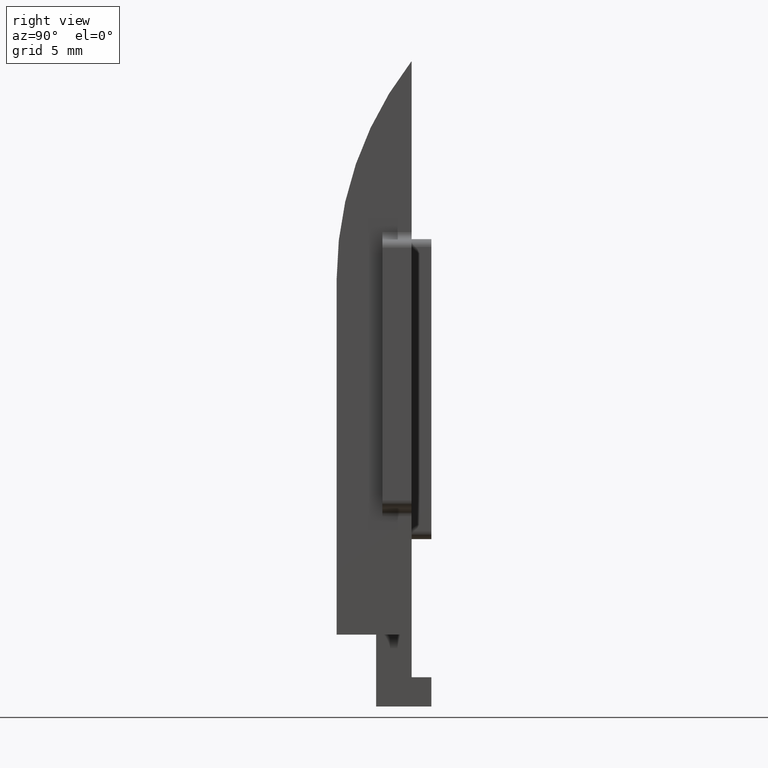
[diagram: clean part render]
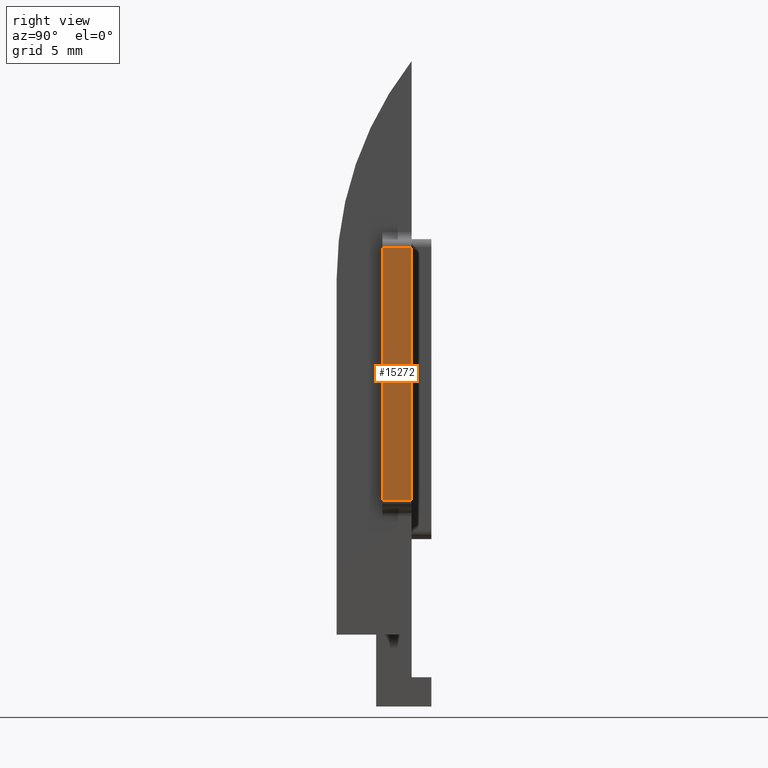
[diagram: same view with one face highlighted and labeled with its STEP entity id]
A machine part, right view. The second image highlights one B-rep face of the part: STEP entity #15272.
In plain terms, the highlighted planar face has unit normal (-1, 0, 0).
Its self-contained STEP definition (entity closure, byte-faithful):
#240 = EDGE_CURVE ( 'NONE', #7403, #10878, #17254, .T. ) ;
#1543 = CARTESIAN_POINT ( 'NONE',  ( 10.49999999999999822, 2.899999999999988365, 8.499999999999976907 ) ) ;
#1632 = CARTESIAN_POINT ( 'NONE',  ( 10.49999999999999822, 2.899999999999986589, 24.49999999999997513 ) ) ;
#2235 = EDGE_CURVE ( 'NONE', #10878, #17781, #17608, .T. ) ;
#2791 = CARTESIAN_POINT ( 'NONE',  ( 10.49999999999999822, 4.749999999999995559, 24.49999999999997513 ) ) ;
#2883 = FACE_OUTER_BOUND ( 'NONE', #8965, .T. ) ;
#3043 = CARTESIAN_POINT ( 'NONE',  ( 10.49999999999999822, 4.749999999999995559, 8.499999999999976907 ) ) ;
#3613 = VECTOR ( 'NONE', #4696, 1000.000000000000000 ) ;
#4696 = DIRECTION ( 'NONE',  ( 0.000000000000000000, 1.000000000000000000, 0.000000000000000000 ) ) ;
#4813 = CARTESIAN_POINT ( 'NONE',  ( 10.49999999999999822, 0.000000000000000000, 8.499999999999976907 ) ) ;
#4857 = EDGE_CURVE ( 'NONE', #7805, #7403, #14892, .T. ) ;
#5677 = EDGE_CURVE ( 'NONE', #17781, #7805, #15819, .T. ) ;
#6038 = PLANE ( 'NONE',  #7765 ) ;
#7403 = VERTEX_POINT ( 'NONE', #2791 ) ;
#7765 = AXIS2_PLACEMENT_3D ( 'NONE', #8589, #15411, #10104 ) ;
#7805 = VERTEX_POINT ( 'NONE', #3043 ) ;
#8585 = CARTESIAN_POINT ( 'NONE',  ( 10.49999999999999822, 2.899999999999988365, 7.999999999999976019 ) ) ;
#8589 = CARTESIAN_POINT ( 'NONE',  ( 10.49999999999999822, 0.000000000000000000, 0.000000000000000000 ) ) ;
#8965 = EDGE_LOOP ( 'NONE', ( #14644, #12134, #11135, #16996 ) ) ;
#9801 = DIRECTION ( 'NONE',  ( -0.000000000000000000, 1.530638361156006245E-16, -1.000000000000000000 ) ) ;
#10077 = DIRECTION ( 'NONE',  ( -0.000000000000000000, -0.000000000000000000, 1.000000000000000000 ) ) ;
#10104 = DIRECTION ( 'NONE',  ( 0.000000000000000000, 0.000000000000000000, 1.000000000000000000 ) ) ;
#10811 = VECTOR ( 'NONE', #10923, 1000.000000000000000 ) ;
#10878 = VERTEX_POINT ( 'NONE', #1632 ) ;
#10923 = DIRECTION ( 'NONE',  ( 0.000000000000000000, -1.000000000000000000, 0.000000000000000000 ) ) ;
#11135 = ORIENTED_EDGE ( 'NONE', *, *, #4857, .T. ) ;
#12134 = ORIENTED_EDGE ( 'NONE', *, *, #5677, .T. ) ;
#14644 = ORIENTED_EDGE ( 'NONE', *, *, #2235, .T. ) ;
#14892 = LINE ( 'NONE', #15504, #16637 ) ;
#15272 = ADVANCED_FACE ( 'NONE', ( #2883 ), #6038, .F. ) ;
#15411 = DIRECTION ( 'NONE',  ( -1.000000000000000000, 0.000000000000000000, 0.000000000000000000 ) ) ;
#15504 = CARTESIAN_POINT ( 'NONE',  ( 10.49999999999999822, 4.749999999999995559, 24.99999999999997868 ) ) ;
#15819 = LINE ( 'NONE', #4813, #3613 ) ;
#16637 = VECTOR ( 'NONE', #10077, 1000.000000000000000 ) ;
#16733 = VECTOR ( 'NONE', #9801, 1000.000000000000000 ) ;
#16996 = ORIENTED_EDGE ( 'NONE', *, *, #240, .T. ) ;
#17254 = LINE ( 'NONE', #17710, #10811 ) ;
#17608 = LINE ( 'NONE', #8585, #16733 ) ;
#17710 = CARTESIAN_POINT ( 'NONE',  ( 10.49999999999999822, 0.000000000000000000, 24.49999999999997513 ) ) ;
#17781 = VERTEX_POINT ( 'NONE', #1543 ) ;